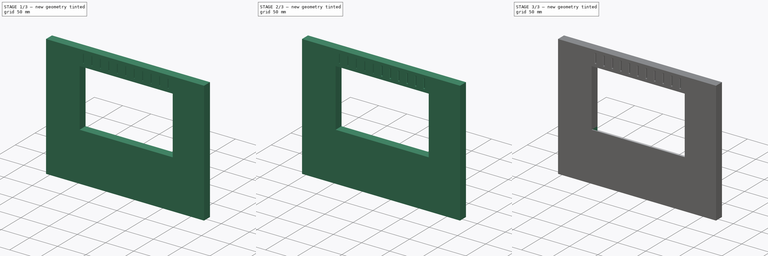
[diagram: build sequence overview — one tinted view per stage of 3, left to right]
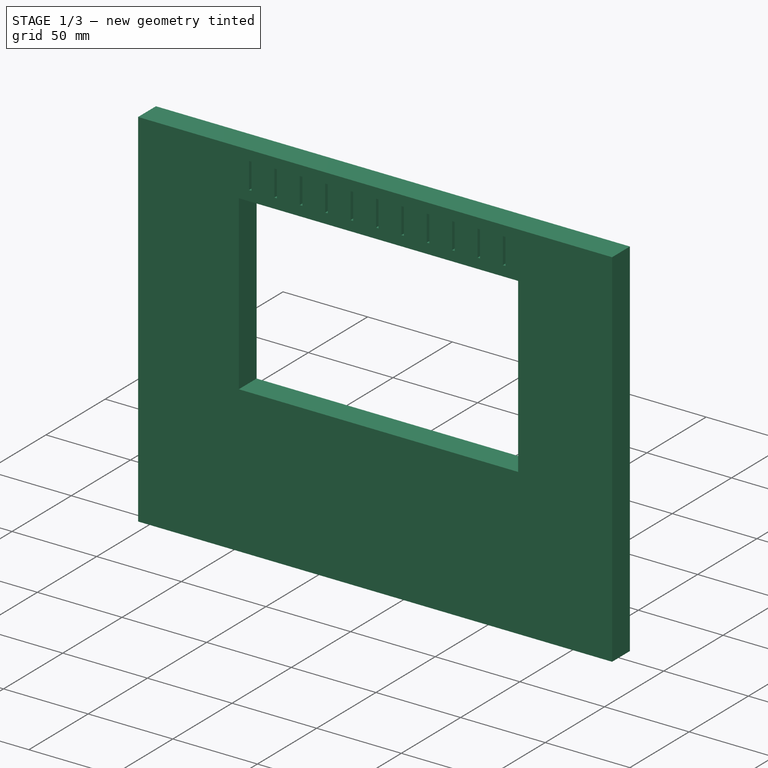
[diagram: stage 1 of 3 — iso view after this stage's code; geometry added in this stage tinted green]
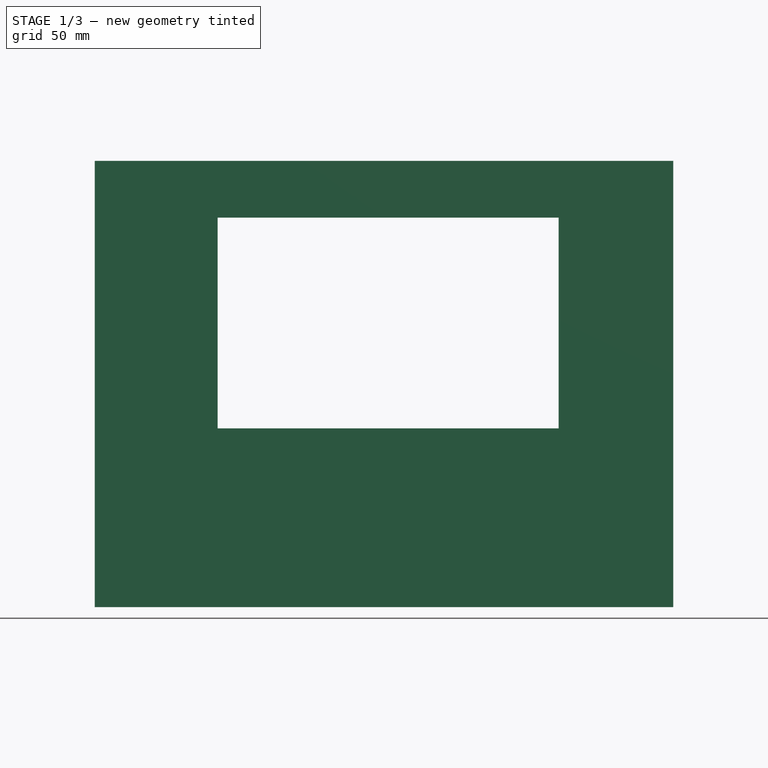
[diagram: stage 1 of 3 — front view after this stage's code; geometry added in this stage tinted green]
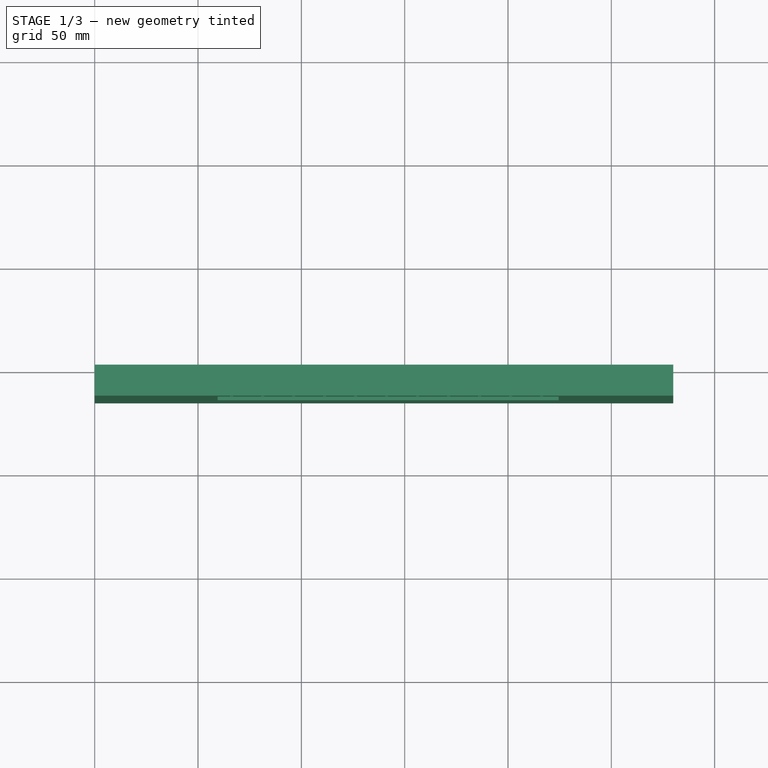
[diagram: stage 1 of 3 — top view after this stage's code; geometry added in this stage tinted green]
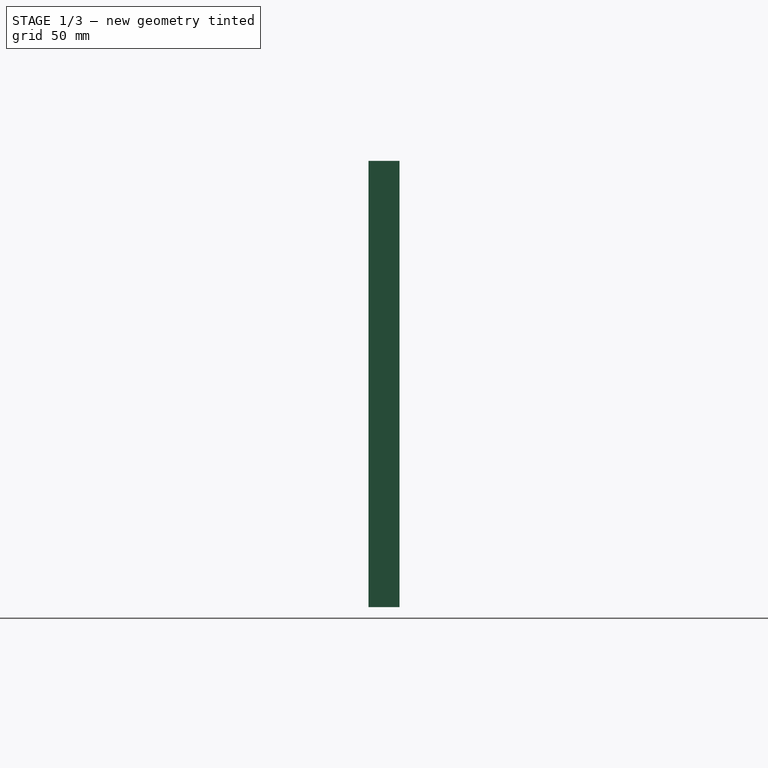
[diagram: stage 1 of 3 — right view after this stage's code; geometry added in this stage tinted green]
FCSTD DOCUMENT  (FreeCAD 1.0R39285 (Git))
Label: TerminalDawn_Screen
License: All rights reserved
LicenseURL: https://en.wikipedia.org/wiki/All_rights_reserved
objects: Sketcher::SketchObject×4, PartDesign::Fillet×3, PartDesign::Pocket×2, PartDesign::Pad×1, App::Part×1, PartDesign::Body×1
note: 27 computed .brp shape members not serialized (recipe doc carries the construction recipe); baked Part::Feature solids carry a one-line shape summary decoded from their .brp

FEATURE [Sketcher::SketchObject] Sketch
  ArcFitTolerance = 1e-06
  AttachmentSupport = -> [XZ_Plane001]
  FullyConstrained = false
  MakeInternals = false
  MapMode = 5
  Placement = pos=(0,0,0) rot=(1,0,0;1.5708rad)
  sketch-geometry (8):
    g0: LineSegment StartX=0 StartY=0 StartZ=0 EndX=0 EndY=-216 EndZ=0
    g1: LineSegment StartX=0 StartY=-216 StartZ=0 EndX=280 EndY=-216 EndZ=0
    g2: LineSegment StartX=280 StartY=-216 StartZ=0 EndX=280 EndY=0 EndZ=0
    g3: LineSegment StartX=280 StartY=0 StartZ=0 EndX=0 EndY=0 EndZ=0
    g4: LineSegment StartX=59.4884 StartY=-27.4788 StartZ=0 EndX=59.4884 EndY=-129.479 EndZ=0
    g5: LineSegment StartX=59.4884 StartY=-129.479 StartZ=0 EndX=224.488 EndY=-129.479 EndZ=0
    g6: LineSegment StartX=224.488 StartY=-129.479 StartZ=0 EndX=224.488 EndY=-27.4788 EndZ=0
    g7: LineSegment StartX=224.488 StartY=-27.4788 StartZ=0 EndX=59.4884 EndY=-27.4788 EndZ=0
  constraints (21):
    c: Coincident(g0,g1)
    c: Coincident(g1,g2)
    c: Coincident(g2,g3)
    c: Coincident(g3,g0)
    c: Vertical(g0)
    c: Vertical(g2)
    c: Horizontal(g1)
    c: Horizontal(g3)
    c: Distance(g0,g2) = 280
    c: Distance(g1,g3) = 216
    c: Coincident(g0,g-1)
    c: Coincident(g4,g5)
    c: Coincident(g5,g6)
    c: Coincident(g6,g7)
    c: Coincident(g7,g4)
    c: Vertical(g4)
    c: Vertical(g6)
    c: Horizontal(g5)
    c: Horizontal(g7)
    c: Distance(g4,g6) = 165
    c: Distance(g5,g7) = 102
FEATURE [PartDesign::Pad] Pad
  Direction = (0,-1,2e-16)
  Length = 15
  Length2 = 10
  Placement = pos=(0,0,0) rot=(1,0,0;1.5708rad)
  Profile = -> Sketch
  ReferenceAxis = -> Sketch [N_Axis]
  Refine = true
  Suppressed = false
  Type = 0
FEATURE [Sketcher::SketchObject] Sketch001  label="MicroSD Slots"
  ArcFitTolerance = 1e-06
  AttachmentSupport = -> [Pad]
  FullyConstrained = false
  MakeInternals = false
  MapMode = 5
  Placement = pos=(0,-15,3.3e-15) rot=(1,0,0;1.5708rad)
  sketch-geometry (44):
    g0: LineSegment StartX=65.5 StartY=-6 StartZ=0 EndX=65.5 EndY=-21.5 EndZ=0
    g1: LineSegment StartX=65.5 StartY=-21.5 StartZ=0 EndX=67 EndY=-21.5 EndZ=0
    g2: LineSegment StartX=67 StartY=-21.5 StartZ=0 EndX=67 EndY=-6 EndZ=0
    g3: LineSegment StartX=67 StartY=-6 StartZ=0 EndX=65.5 EndY=-6 EndZ=0
    g4: LineSegment StartX=80.5 StartY=-6 StartZ=0 EndX=80.5 EndY=-21.5 EndZ=0
    g5: LineSegment StartX=80.5 StartY=-21.5 StartZ=0 EndX=82 EndY=-21.5 EndZ=0
    g6: LineSegment StartX=82 StartY=-21.5 StartZ=0 EndX=82 EndY=-6 EndZ=0
    g7: LineSegment StartX=82 StartY=-6 StartZ=0 EndX=80.5 EndY=-6 EndZ=0
    g8: LineSegment StartX=95.5 StartY=-6 StartZ=0 EndX=95.5 EndY=-21.5 EndZ=0
    g9: LineSegment StartX=95.5 StartY=-21.5 StartZ=0 EndX=97 EndY=-21.5 EndZ=0
    g10: LineSegment StartX=97 StartY=-21.5 StartZ=0 EndX=97 EndY=-6 EndZ=0
    g11: LineSegment StartX=97 StartY=-6 StartZ=0 EndX=95.5 EndY=-6 EndZ=0
    g12: LineSegment StartX=110.5 StartY=-6 StartZ=0 EndX=110.5 EndY=-21.5 EndZ=0
    g13: LineSegment StartX=110.5 StartY=-21.5 StartZ=0 EndX=112 EndY=-21.5 EndZ=0
    g14: LineSegment StartX=112 StartY=-21.5 StartZ=0 EndX=112 EndY=-6 EndZ=0
    g15: LineSegment StartX=112 StartY=-6 StartZ=0 EndX=110.5 EndY=-6 EndZ=0
    g16: LineSegment StartX=125.5 StartY=-6 StartZ=0 EndX=125.5 EndY=-21.5 EndZ=0
    g17: LineSegment StartX=125.5 StartY=-21.5 StartZ=0 EndX=127 EndY=-21.5 EndZ=0
    g18: LineSegment StartX=127 StartY=-21.5 StartZ=0 EndX=127 EndY=-6 EndZ=0
    g19: LineSegment StartX=127 StartY=-6 StartZ=0 EndX=125.5 EndY=-6 EndZ=0
    g20: LineSegment StartX=140.5 StartY=-6 StartZ=0 EndX=140.5 EndY=-21.5 EndZ=0
    g21: LineSegment StartX=140.5 StartY=-21.5 StartZ=0 EndX=142 EndY=-21.5 EndZ=0
    g22: LineSegment StartX=142 StartY=-21.5 StartZ=0 EndX=142 EndY=-6 EndZ=0
    g23: LineSegment StartX=142 StartY=-6 StartZ=0 EndX=140.5 EndY=-6 EndZ=0
    g24: LineSegment StartX=155.5 StartY=-6 StartZ=0 EndX=155.5 EndY=-21.5 EndZ=0
    g25: LineSegment StartX=155.5 StartY=-21.5 StartZ=0 EndX=157 EndY=-21.5 EndZ=0
    g26: LineSegment StartX=157 StartY=-21.5 StartZ=0 EndX=157 EndY=-6 EndZ=0
    g27: LineSegment StartX=157 StartY=-6 StartZ=0 EndX=155.5 EndY=-6 EndZ=0
    g28: LineSegment StartX=170.5 StartY=-6 StartZ=0 EndX=170.5 EndY=-21.5 EndZ=0
    g29: LineSegment StartX=170.5 StartY=-21.5 StartZ=0 EndX=172 EndY=-21.5 EndZ=0
    g30: LineSegment StartX=172 StartY=-21.5 StartZ=0 EndX=172 EndY=-6 EndZ=0
    g31: LineSegment StartX=172 StartY=-6 StartZ=0 EndX=170.5 EndY=-6 EndZ=0
    g32: LineSegment StartX=185.5 StartY=-6 StartZ=0 EndX=185.5 EndY=-21.5 EndZ=0
    g33: LineSegment StartX=185.5 StartY=-21.5 StartZ=0 EndX=187 EndY=-21.5 EndZ=0
    g34: LineSegment StartX=187 StartY=-21.5 StartZ=0 EndX=187 EndY=-6 EndZ=0
    g35: LineSegment StartX=187 StartY=-6 StartZ=0 EndX=185.5 EndY=-6 EndZ=0
    g36: LineSegment StartX=200.5 StartY=-6 StartZ=0 EndX=200.5 EndY=-21.5 EndZ=0
    g37: LineSegment StartX=200.5 StartY=-21.5 StartZ=0 EndX=202 EndY=-21.5 EndZ=0
    g38: LineSegment StartX=202 StartY=-21.5 StartZ=0 EndX=202 EndY=-6 EndZ=0
    g39: LineSegment StartX=202 StartY=-6 StartZ=0 EndX=200.5 EndY=-6 EndZ=0
    g40: LineSegment StartX=215.5 StartY=-6 StartZ=0 EndX=215.5 EndY=-21.5 EndZ=0
    g41: LineSegment StartX=215.5 StartY=-21.5 StartZ=0 EndX=217 EndY=-21.5 EndZ=0
    g42: LineSegment StartX=217 StartY=-21.5 StartZ=0 EndX=217 EndY=-6 EndZ=0
    g43: LineSegment StartX=217 StartY=-6 StartZ=0 EndX=215.5 EndY=-6 EndZ=0
  constraints (66):
    c: Coincident(g0,g1)
    c: Coincident(g1,g2)
    c: Coincident(g2,g3)
    c: Coincident(g3,g0)
    c: Distance(g1,g3) = 15.5
    c: Distance(g0,g2) = 1.5
    c: Coincident(g4,g5)
    c: Coincident(g8,g9)
    c: Coincident(g12,g13)
    c: Coincident(g16,g17)
    c: Coincident(g20,g21)
    c: Coincident(g24,g25)
    c: Coincident(g28,g29)
    c: Coincident(g32,g33)
    c: Coincident(g36,g37)
    c: Coincident(g40,g41)
    c: Coincident(g5,g6)
    c: Coincident(g9,g10)
    c: Coincident(g13,g14)
    c: Coincident(g17,g18)
    c: Coincident(g21,g22)
    c: Coincident(g25,g26)
    c: Coincident(g29,g30)
    c: Coincident(g33,g34)
    c: Coincident(g37,g38)
    c: Coincident(g41,g42)
    c: Coincident(g6,g7)
    c: Coincident(g10,g11)
    c: Coincident(g14,g15)
    c: Coincident(g18,g19)
    c: Coincident(g22,g23)
    c: Coincident(g26,g27)
    c: Coincident(g30,g31)
    c: Coincident(g34,g35)
    c: Coincident(g38,g39)
    c: Coincident(g42,g43)
    c: Coincident(g7,g4)
    c: Coincident(g11,g8)
    c: Coincident(g15,g12)
    c: Coincident(g19,g16)
    c: Coincident(g23,g20)
    c: Coincident(g27,g24)
    c: Coincident(g31,g28)
    c: Coincident(g35,g32)
    c: Coincident(g39,g36)
    c: Coincident(g43,g40)
    c: Distance(g5,g7) = 15.5
    c: Distance(g9,g11) = 15.5
    c: Distance(g13,g15) = 15.5
    c: Distance(g17,g19) = 15.5
    c: Distance(g21,g23) = 15.5
    c: Distance(g25,g27) = 15.5
    c: Distance(g29,g31) = 15.5
    c: Distance(g33,g35) = 15.5
    c: Distance(g37,g39) = 15.5
    c: Distance(g41,g43) = 15.5
    c: Distance(g4,g6) = 1.5
    c: Distance(g8,g10) = 1.5
    c: Distance(g12,g14) = 1.5
    c: Distance(g16,g18) = 1.5
    c: Distance(g20,g22) = 1.5
    c: Distance(g24,g26) = 1.5
    c: Distance(g28,g30) = 1.5
    c: Distance(g32,g34) = 1.5
    c: Distance(g36,g38) = 1.5
    c: Distance(g40,g42) = 1.5
FEATURE [PartDesign::Pocket] Pocket
  BaseFeature = -> Pad
  Direction = (0,1,-2e-16)
  Length = 8
  Length2 = 5
  Placement = pos=(0,0,0) rot=(1,0,0;1.5708rad)
  Profile = -> Sketch001
  ReferenceAxis = -> Sketch001 [N_Axis]
  Refine = true
  Suppressed = false
  Type = 0
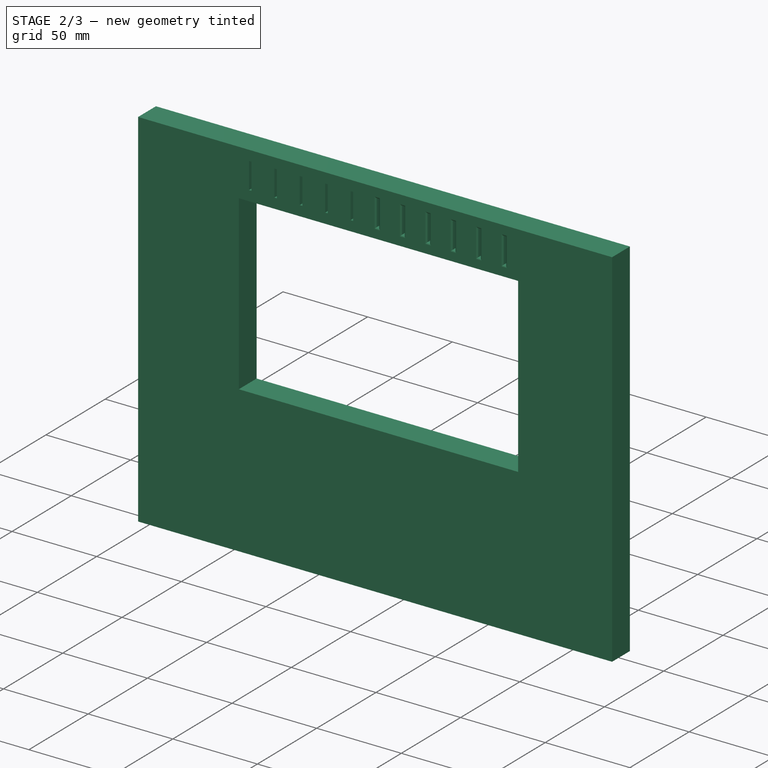
[diagram: stage 2 of 3 — iso view after this stage's code; geometry added in this stage tinted green]
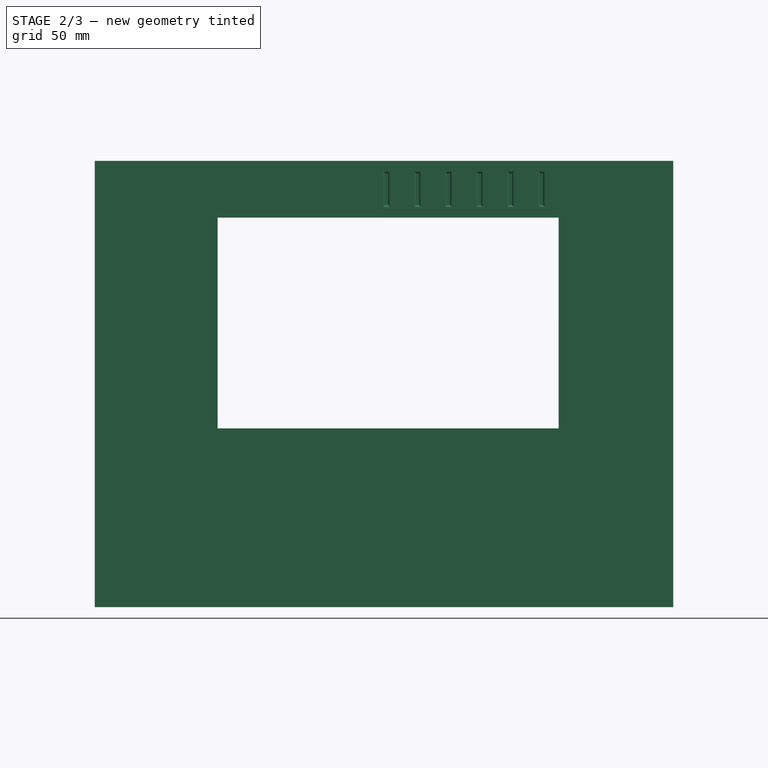
[diagram: stage 2 of 3 — front view after this stage's code; geometry added in this stage tinted green]
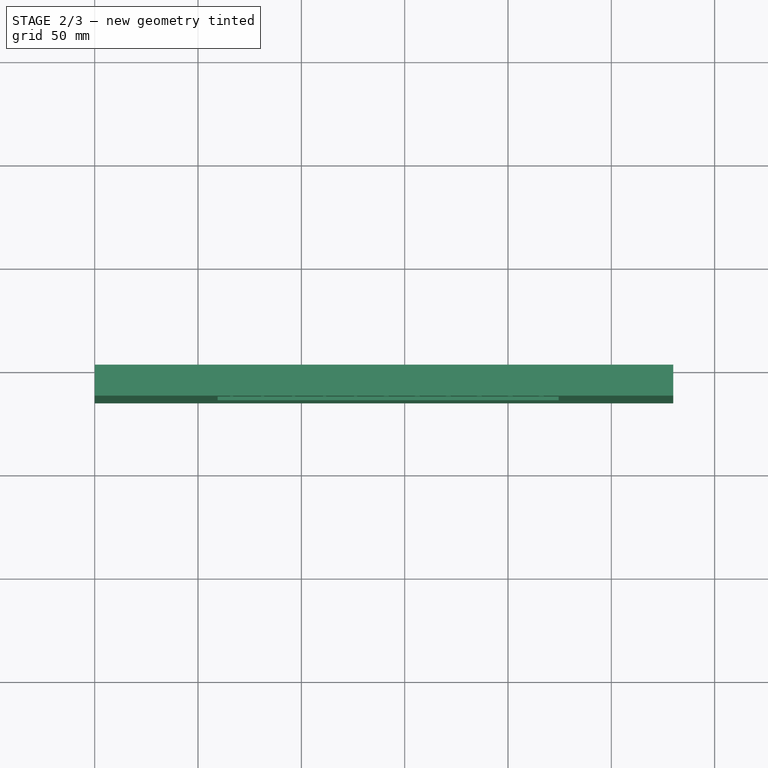
[diagram: stage 2 of 3 — top view after this stage's code; geometry added in this stage tinted green]
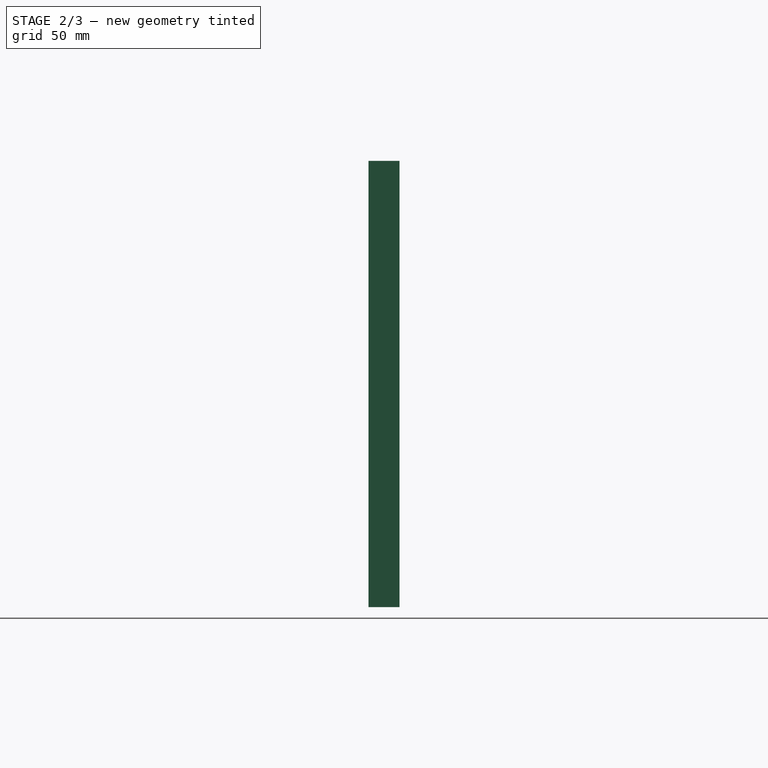
[diagram: stage 2 of 3 — right view after this stage's code; geometry added in this stage tinted green]
FEATURE [Sketcher::SketchObject] Sketch002
  ArcFitTolerance = 1e-06
  AttachmentSupport = -> [Pocket]
  FullyConstrained = true
  MakeInternals = false
  MapMode = 5
  Placement = pos=(59.4884,0,0) rot=(0.707107,0,0.707107;3.14159rad)
FEATURE [PartDesign::Fillet] Fillet
  Base = -> Pocket [Edge62,Vertex57,Edge61,Edge64,Edge63]
  BaseFeature = -> Pocket
  Placement = pos=(0,0,0) rot=(1,0,0;1.5708rad)
  Radius = 1
  Refine = true
  SupportTransform = false
  Suppressed = false
  UseAllEdges = false
FEATURE [PartDesign::Fillet] Fillet001
  Base = -> Fillet [Edge49,Edge50,Edge52,Edge51,Edge47,Edge46,Edge48,Edge45,Edge41,Edge44,Edge42,Edge43,Edge39,Edge40,Edge38,Edge37,Edge29,Edge30,Edge32,Edge31]
  BaseFeature = -> Fillet
  Placement = pos=(0,0,0) rot=(1,0,0;1.5708rad)
  Radius = 1
  Refine = true
  SupportTransform = false
  Suppressed = false
  UseAllEdges = false
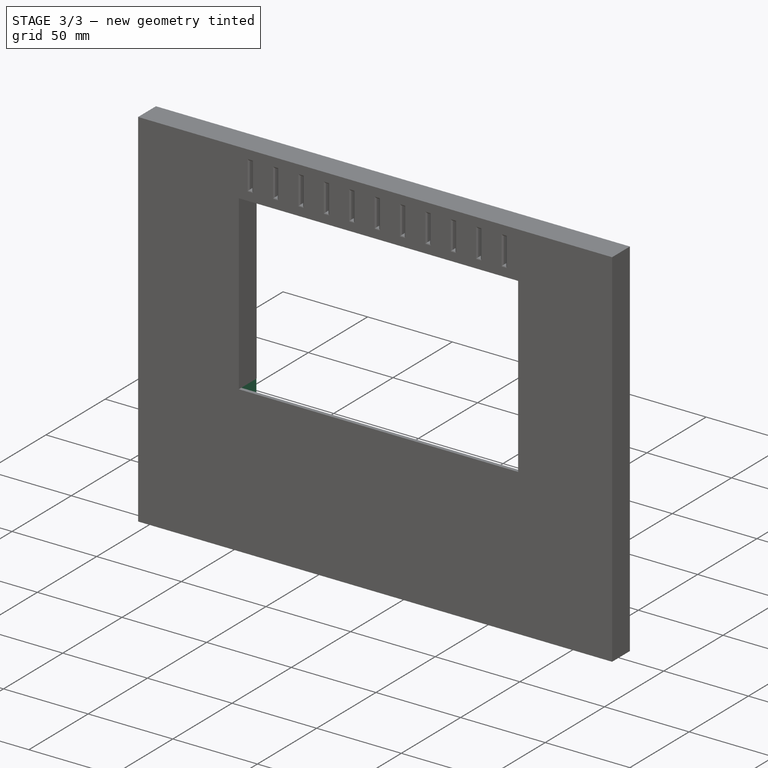
[diagram: stage 3 of 3 — iso view after this stage's code; geometry added in this stage tinted green]
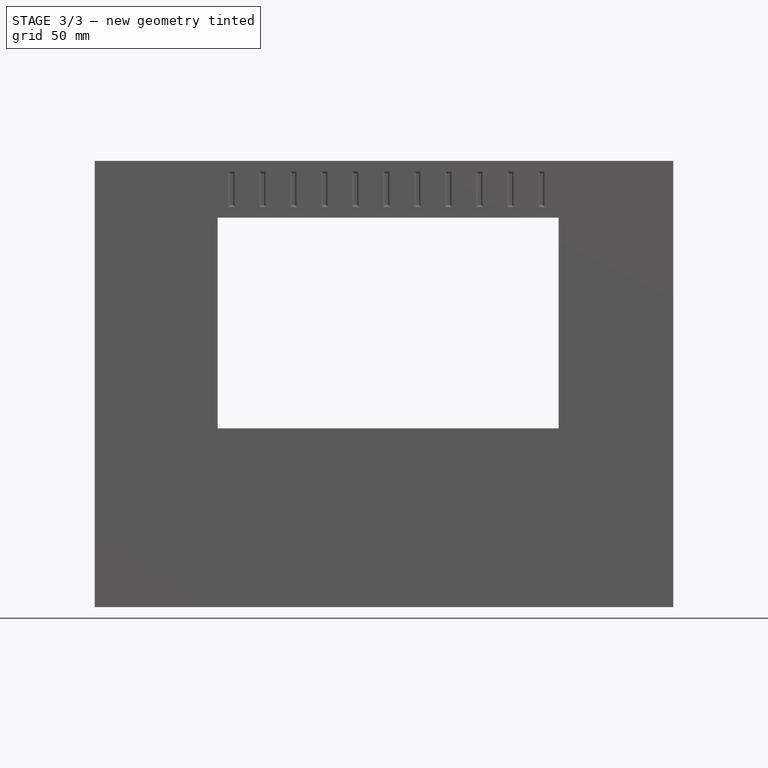
[diagram: stage 3 of 3 — front view after this stage's code; geometry added in this stage tinted green]
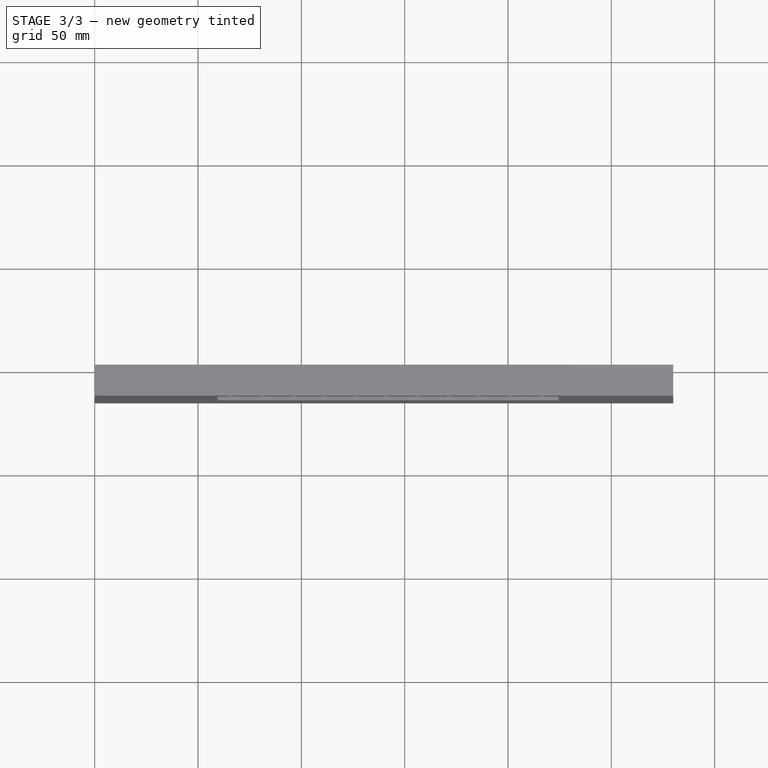
[diagram: stage 3 of 3 — top view after this stage's code; geometry added in this stage tinted green]
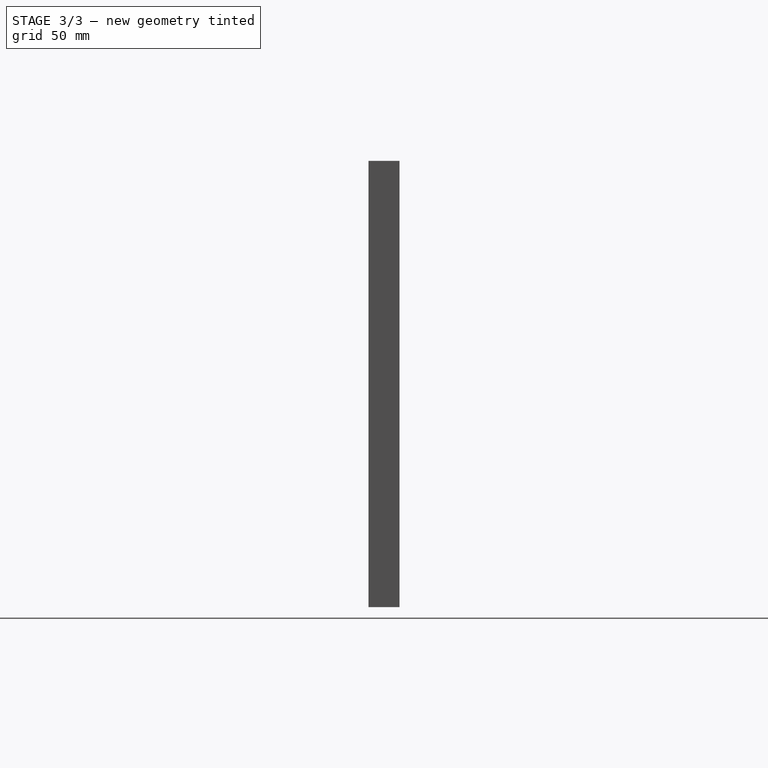
[diagram: stage 3 of 3 — right view after this stage's code; geometry added in this stage tinted green]
FEATURE [PartDesign::Fillet] Fillet002
  Base = -> Fillet001 [Edge31,Edge30,Edge32,Edge29,Edge25,Edge26,Edge28,Edge27,Vertex24,Edge23,Edge24,Edge22,Edge21,Edge17,Edge18,Edge20,Edge19,Edge15,Edge16,Edge14,Edge13]
  BaseFeature = -> Fillet001
  Placement = pos=(0,0,0) rot=(1,0,0;1.5708rad)
  Radius = 1
  Refine = true
  SupportTransform = false
  Suppressed = false
  UseAllEdges = false
FEATURE [App::Part] Part
  Origin = -> Origin
FEATURE [Sketcher::SketchObject] Sketch003
  ArcFitTolerance = 1e-06
  AttachmentSupport = -> [Fillet002]
  FullyConstrained = false
  MakeInternals = false
  MapMode = 5
  Placement = pos=(0,-5.7e-14,-129.479) rot=(0,0,1;3.14159rad)
  sketch-geometry (4):
    g0: LineSegment StartX=-224.437 StartY=12.9077 StartZ=0 EndX=-224.437 EndY=0 EndZ=0
    g1: LineSegment StartX=-224.437 StartY=0 StartZ=0 EndX=-59.3524 EndY=0 EndZ=0
    g2: LineSegment StartX=-59.3524 StartY=0 StartZ=0 EndX=-59.3524 EndY=12.9077 EndZ=0
    g3: LineSegment StartX=-59.3524 StartY=12.9077 StartZ=0 EndX=-224.437 EndY=12.9077 EndZ=0
  constraints (9):
    c: Coincident(g0,g1)
    c: Coincident(g1,g2)
    c: Coincident(g2,g3)
    c: Coincident(g3,g0)
    c: Vertical(g0)
    c: Vertical(g2)
    c: Horizontal(g1)
    c: Horizontal(g3)
    c: PointOnObject(g1,g-1)
FEATURE [PartDesign::Pocket] Pocket001
  BaseFeature = -> Fillet002
  Direction = (0,0,-1)
  Length = 15
  Length2 = 5
  Placement = pos=(0,0,0) rot=(1,0,0;1.5708rad)
  Profile = -> Sketch003
  ReferenceAxis = -> Sketch003 [N_Axis]
  Refine = true
  Suppressed = false
  Type = 0
FEATURE [PartDesign::Body] Body001  label="MonitorMount"
  AllowCompound = false
  Group = -> [Sketch,Pad,Sketch001,Pocket,Sketch002,Fillet,Fillet001,Fillet002,Sketch003,Pocket001]
  Origin = -> Origin001
  Tip = -> Pocket001
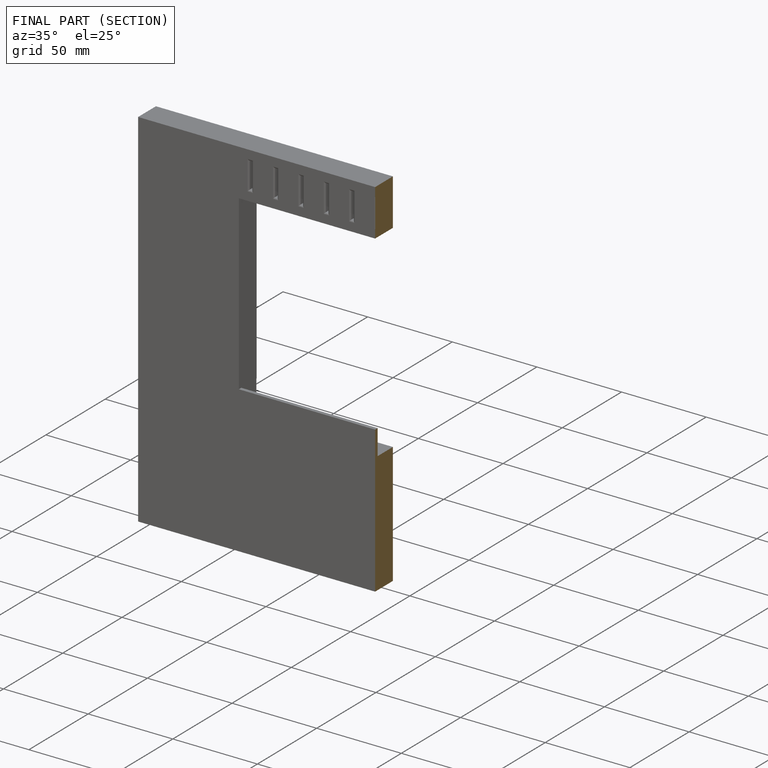
[diagram: finished part — half-section view (interior)]
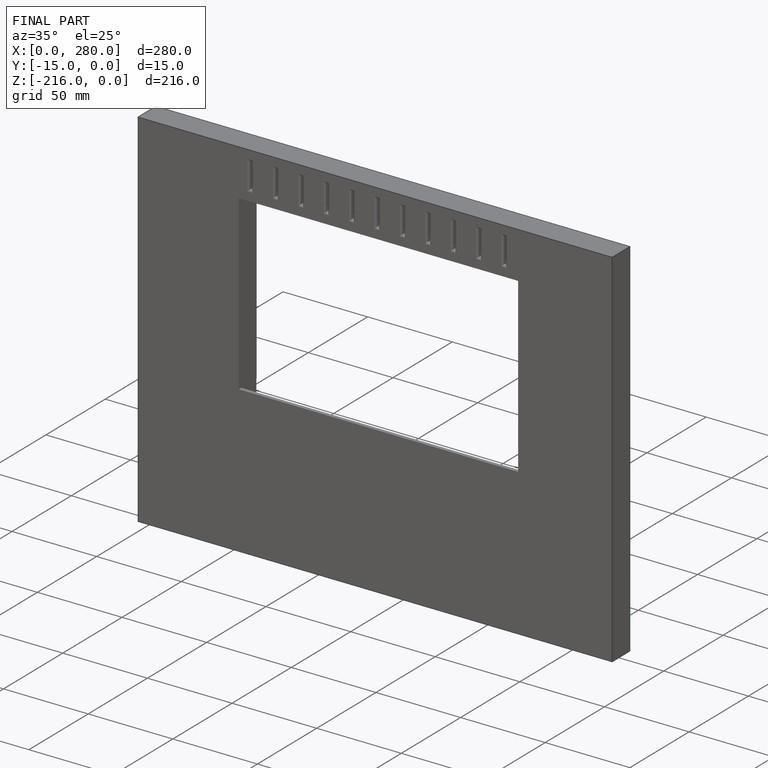
[diagram: finished part — iso view with bounding-box wireframe]
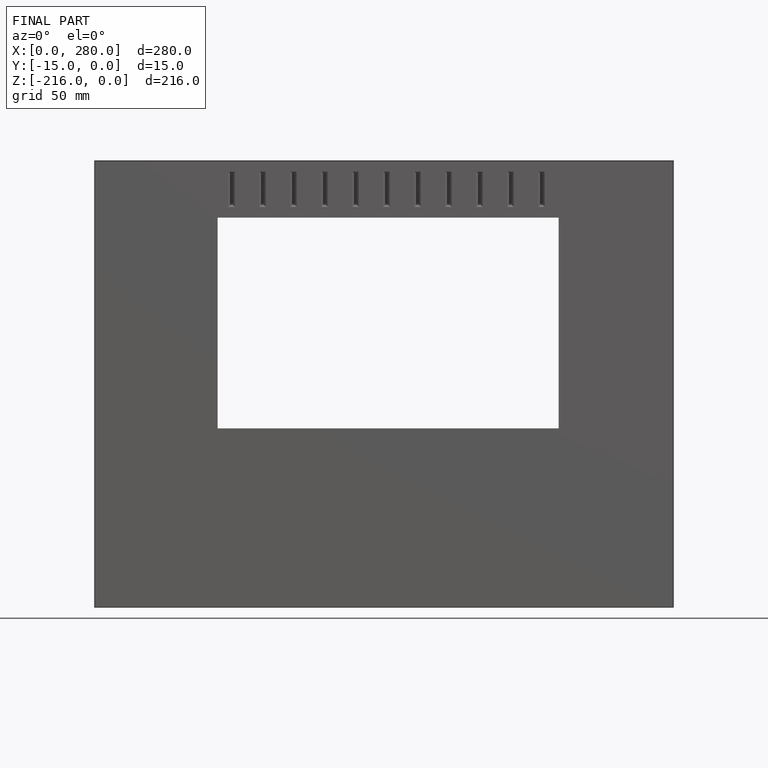
[diagram: finished part — front view with bounding-box wireframe]
